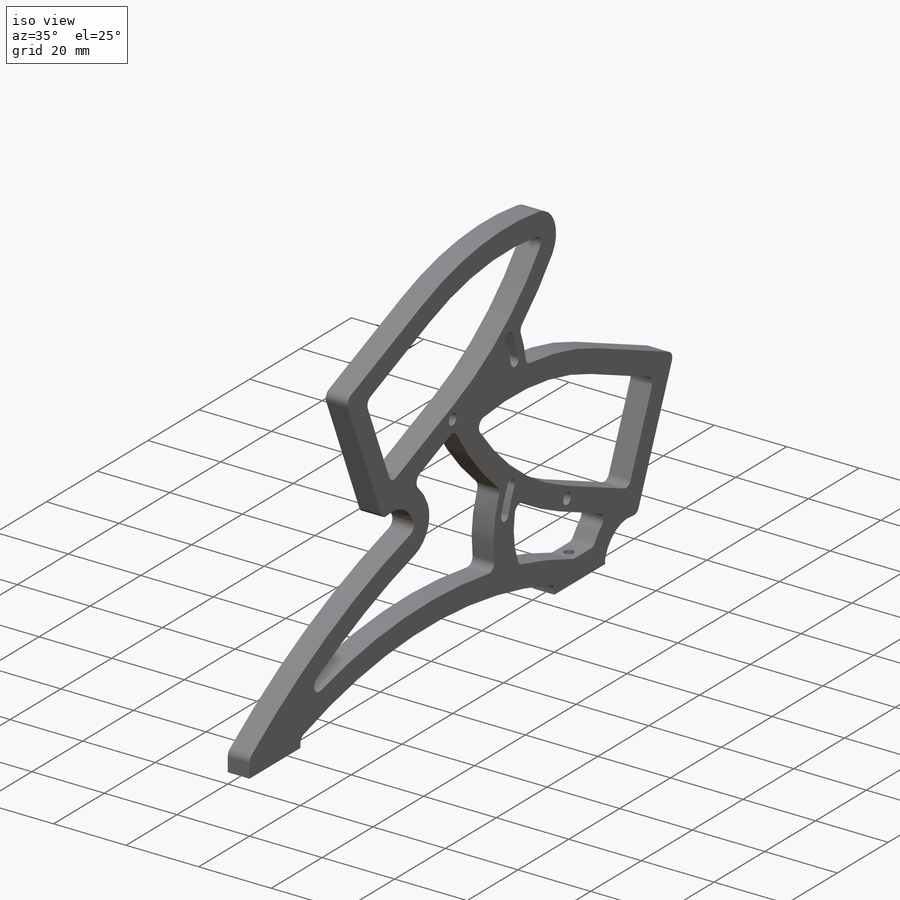
[diagram: iso view]
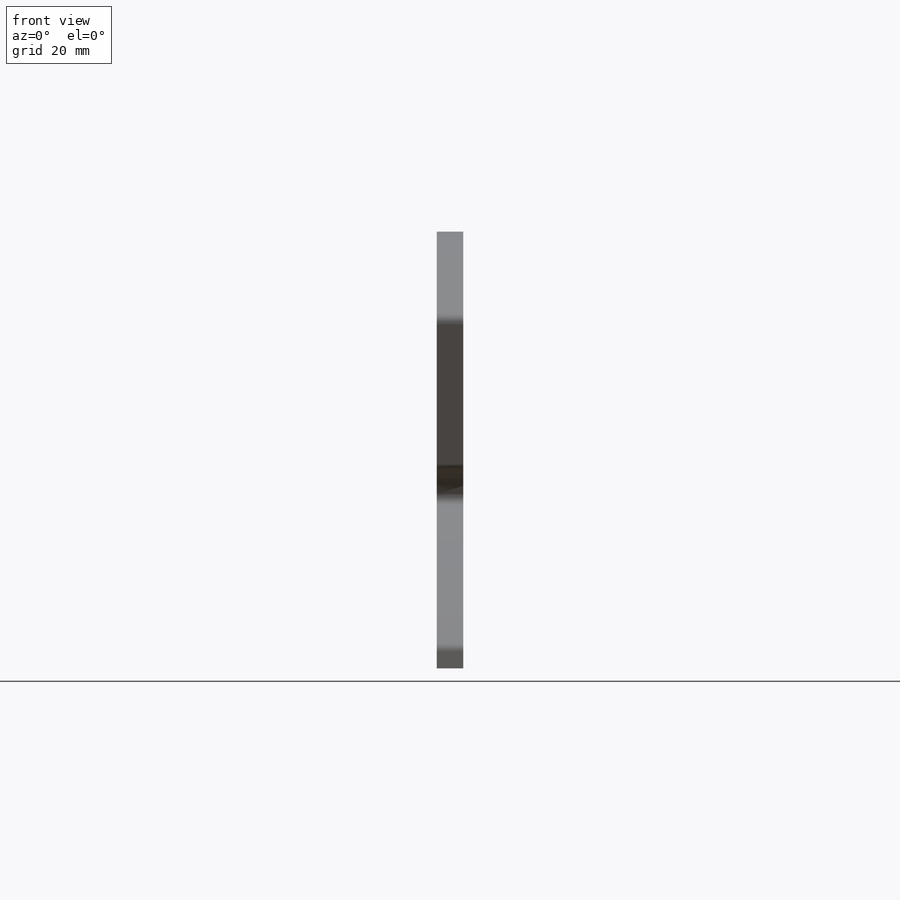
[diagram: front view]
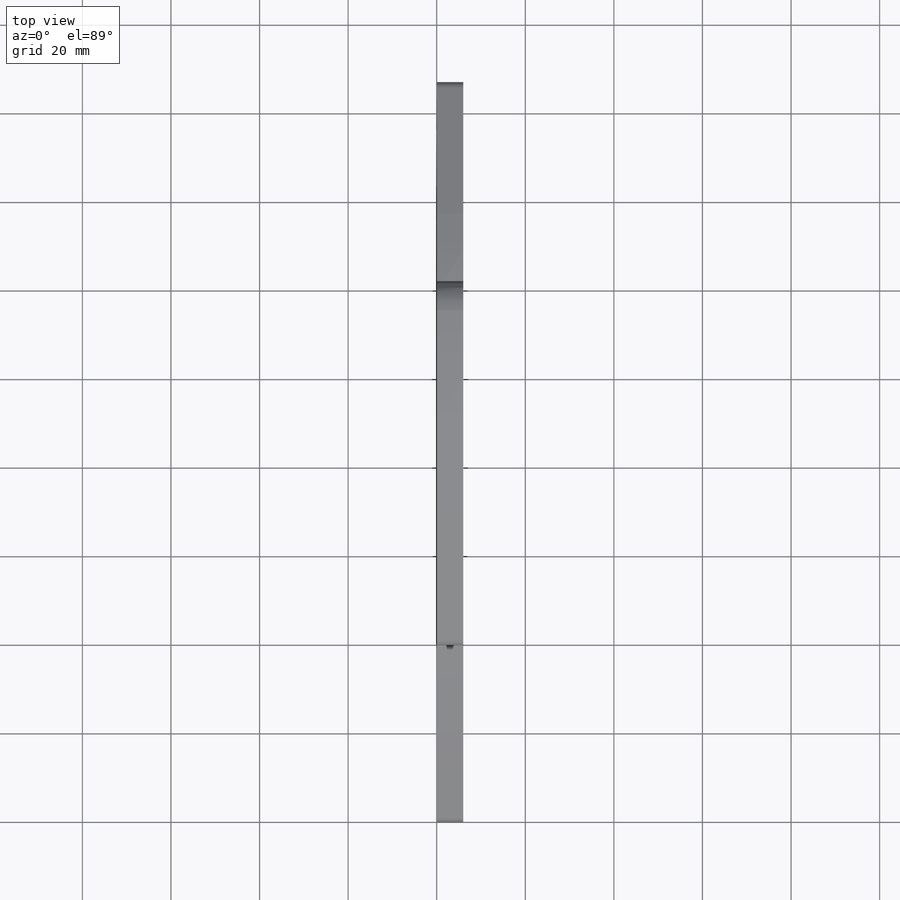
[diagram: top view]
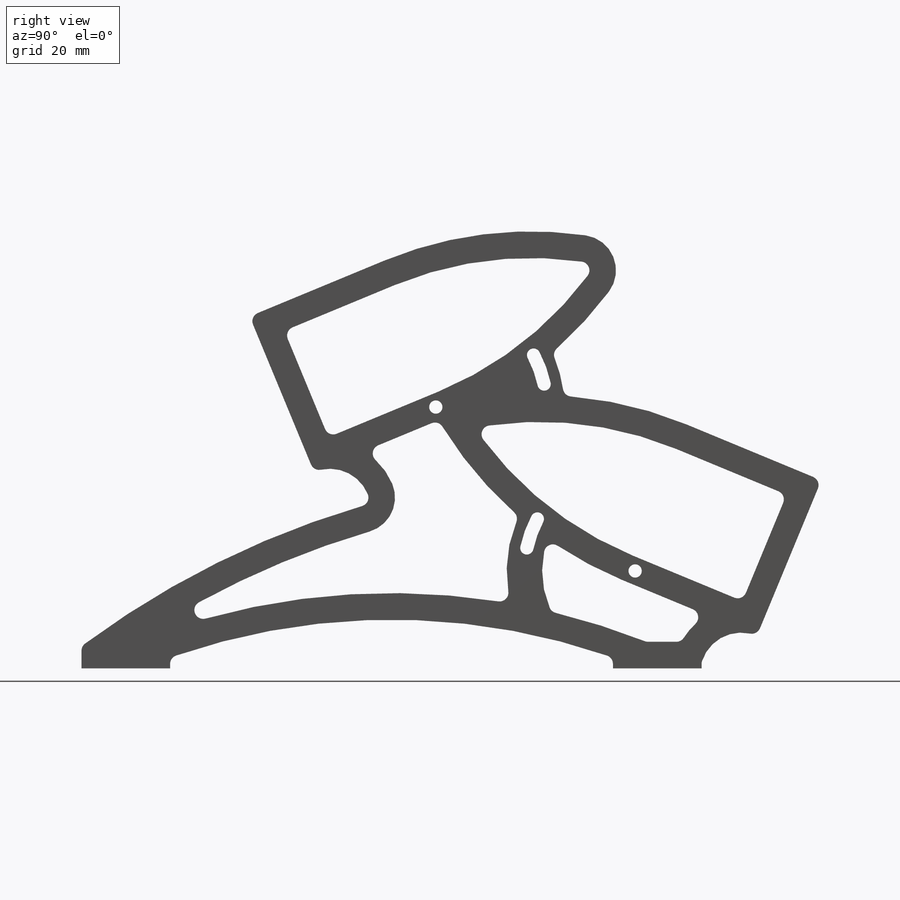
[diagram: right view]
SOLIDWORKS PART (.sldprt)
format: sldprt  version: not decoded by parser v0  size: 535,040 bytes
history: native  units: mm
features: sketch x3, material x1, extrude x1, fillet x1, hole x1 (+11 scaffold rows collapsed)
feature tree (18):
  scaffold x11  (default folders/planes/origin — collapsed)
  material  "1060 Alloy"
  sketch  "Sketch1"  dims[c1.D1=3.0mm c1.D3=1.5mm c1.D8=3.0mm c1.D11=5.0mm c1.D12=3.0mm c1.D14=120.0mm c2.D11=~86.741549mm c2.D16=130.0mm c2.D17=100.0mm c2.D21=~145.369394mm c2.D22=~134.09184mm c2.D23=4.0mm c2.D24=~35.640053mm c2.D18=4.0mm c3.D21=4.0mm c3.D22=4.0mm c3.D23=4.0mm c3.D14=4.0mm c3.D29=4.0mm c3.D25=5.0mm c3.D28=2.0mm c3.D36=~79.53882mm c3.D37=74.9687mm c3.D38=5.0mm c3.D39=3.0mm c3.D40=3.0mm c3.D45=~72.165522mm c3.D46=2.0mm c3.D47=~29.02476mm c3.D48=~20.97524mm c3.D49=1.5mm c3.D52=~50.898978mm c3.D53=4.0mm c3.D54=25.0mm c3.D55=~27.310463mm c3.D56=2.0mm c3.D57=150.0mm c3.D58=2.0mm c3.D59=200.0mm c3.D60=~9.283484mm c3.D61=150.0mm c3.D62=~32.239205mm c3.D63=200.0mm c3.D64=8.0mm c3.D67=~21.305989mm c3.D68=150.0mm c3.D69=~9.283484mm c4.D54=29.0mm c4.D2=25.0mm c4.D4=25.0mm c4.D5=22.0mm c5.D5=20.0deg c5.D6=22.0mm c6.D6=40.0deg c6.D7=40.0mm c6.D8=30.0mm c6.D9=10.0mm c6.D10=120.0mm c6.D11=~61.378349mm c7.D11=150.0deg c7.D12=60.0mm c7.D13=85.0mm c7.D14=55.0mm c7.D15=20.0mm c7.D16=~14.664035mm c8.D16=45.0deg c8.D12=20.0mm c8.D14=108.0mm c8.D15=38.0mm c9.D16=50.0mm c9.D8=35.0mm c9.D11=~43.555552mm c9.D17=~82.246767mm c9.D9=~78.34061mm c10.D9=135.0deg c10.D11=~133.060065mm c11.D11=45.0deg c12.D11=~21.438602mm c13.D11=135.0deg c13.D8=35.0mm c13.D9=10.0mm c14.D8=5.0mm c14.D9=10.0mm c14.D12=32.0mm c14.D14=12.0mm c14.D11=10.0mm c15.D14=36.0mm c15.D15=12.0mm c15.D17=12.0mm c15.D18=12.0mm c15.D19=~7.532193mm c16.D19=157.5deg c16.D20=~42.442841mm c17.D20=157.5deg c17.D21=15.0mm c17.D22=15.0mm c17.D15=10.0mm c18.D21=10.0mm c18.D17=10.0mm c18.D18=10.0mm c18.D23=32.0mm c18.D24=15.0mm c18.D25=32.0mm c18.D26=32.0mm c18.D12=12.0mm c18.D15=10.0mm c19.D21=10.0mm c19.D22=15.0mm c19.D24=15.0mm c19.D25=24.0mm c19.D26=24.0mm c20.D25=24.0mm c20.D26=~31.242641mm c20.D22=15.0mm c21.D25=24.0mm c21.D26=~29.866413mm c21.D9=50.0mm c21.D11=10.0mm c22.D11=150.0deg c22.D13=~19.773674mm c22.D9=20.0mm c23.D13=10.0mm c23.D15=55.0mm c23.D16=30.0mm c23.D17=~11.293323mm c24.D17=150.0deg c24.D16=30.0mm c24.D7=120.0mm c24.D12=80.0mm c24.D15=60.0mm c25.D16=40.0mm c25.D18=10.0mm c25.D21=38.0mm c25.D22=38.0mm c25.D23=38.0mm c25.D17=10.0mm c26.D18=~8.660254mm c26.D11=20.0mm c27.D18=30.0mm c27.D19=20.0mm c27.D7=125.0mm c27.D10=80.0mm c28.D18=100.0mm c28.D10=120.0mm c28.D11=~16.365728mm c29.D11=157.5deg c29.D16=~35.010126mm c30.D16=22.5deg c30.D17=~13.397795mm c31.D17=90.0deg c31.D18=35.0mm c31.D20=~42.168768mm c32.D20=90.0deg c32.D11=30.0mm c32.D18=30.0mm c33.D20=65.0mm c33.D21=12.0mm c33.D22=12.0mm c33.D23=12.0mm c33.D24=10.0mm c33.D11=~93.064929mm c34.D11=22.5deg c34.D16=20.0mm c35.D16=22.5deg c35.D17=6.0mm c35.D18=6.0mm c35.D20=30.0mm c35.D21=30.0mm c35.D22=35.0mm c35.D23=80.0mm c35.D11=3.0mm c35.D15=5.5mm c36.D16=2.1mm c36.D19=6.0mm c36.D24=3.0mm c36.D25=10.0mm c36.D26=6.0mm c36.D27=20.0mm c36.D28=20.0mm c36.D29=60.0mm c36.D30=6.0mm c37.D30=22.5deg c37.D31=~73.910363mm c38.D31=22.5deg c38.D14=10.0mm c38.D32=98.0mm c38.D13=2.5mm c38.D30=2.5mm c39.D31=80.0mm c40.D31=22.5deg c40.D33=~73.238115mm c41.D33=22.5deg c41.D29=59.0mm c41.D10=100.0mm c41.D11=22.0mm c41.D13=1.0mm c41.D14=80.0mm c42.D14=22.5deg c42.D15=80.0mm c43.D15=22.5deg c43.D16=2.0mm c43.D19=2.0mm c43.D24=3.0mm c43.D25=2.0mm c43.D26=3.0mm c43.D27=2.0mm c44.D19=30.0mm c44.D30=3.0mm c44.D31=3.0mm c44.D33=3.0mm c44.D34=3.0mm c44.D35=3.0mm c44.D36=3.0mm c44.D37=3.0mm c44.D38=~3.000001mm c44.D41=3.0mm c44.D42=3.0mm c44.D43=3.0mm c44.D44=3.0mm c44.D45=3.0mm c44.D46=~2.999999mm c44.D47=4.0mm c44.D48=4.0mm c44.D49=3.0mm c44.D50=3.0mm c44.D51=3.0mm c44.D52=3.0mm c44.D53=2.0mm c44.D54=4.0mm c44.D55=4.0mm c44.D60=6.0mm c44.D61=6.0mm c44.D62=4.0mm c44.D63=6.0mm c44.D65=6.0mm c44.D66=~37.878944mm c45.D66=~0.394004deg c46.D66=3.0mm c46.D67=4.0mm c46.D68=6.0mm c46.D69=6.0mm c46.D39=8.0mm c46.D40=~11.602315mm c47.D40=12.0deg c47.D47=25.0mm c48.D47=16.0deg c48.D48=~23.149517mm c49.D48=16.0deg c50.D48=~12.697298mm c51.D48=12.0deg c51.D53=~24.031542mm c52.D53=16.0deg c52.D54=4.0mm]
  extrude  "Boss-Extrude1"  Depth=6mm
  fillet  "Fillet1"  Radius=2mm
  hole  "Tap Drill for M3 Tap1"  Diameter=2.5mm Depth=10mm
  sketch  "Sketch3"  dims[D1=10.0mm D2=3.0mm D3=10.0mm]
  sketch  "Sketch2"  dims[hole-wizard template sketch: 50 standard entries collapsed; hole parameters above]
decode coverage: 6 of 6 modeling features carry decoded parameters
note: ~ marks probable driven/reference dimensions
note: suppression state not decoded; provenance and decode notes live in map.json
